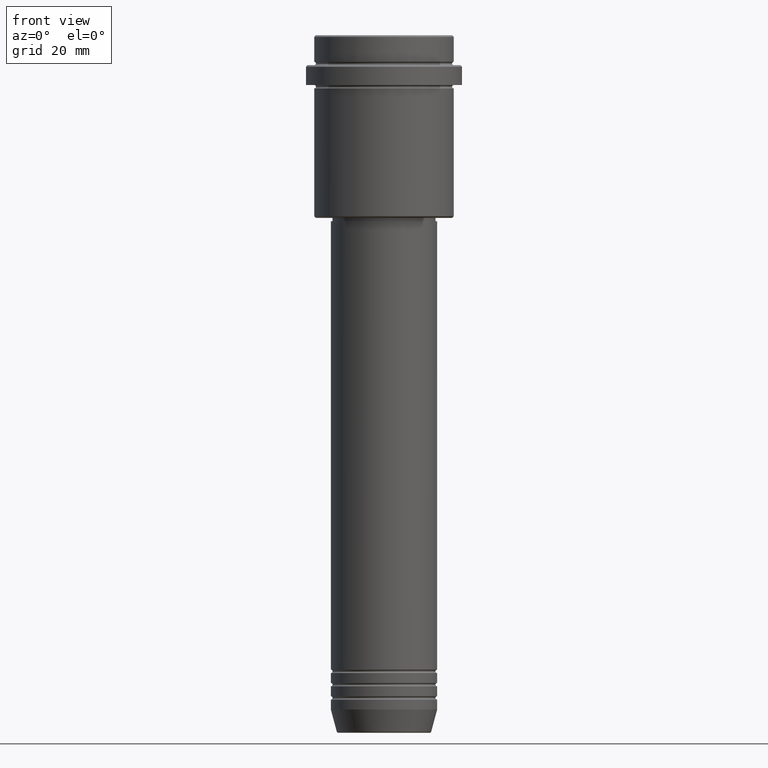
[diagram: clean part render]
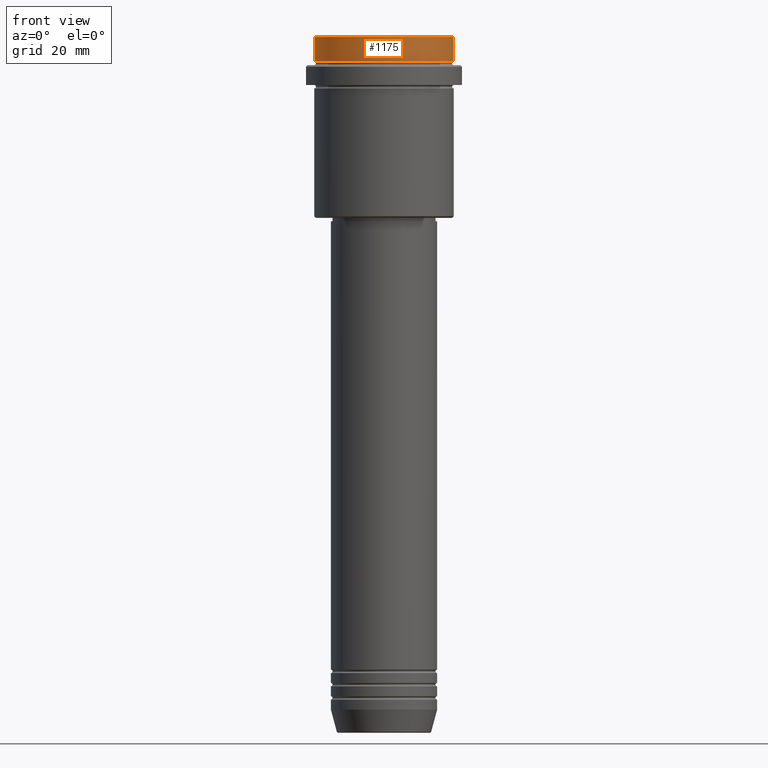
[diagram: same view with one face highlighted and labeled with its STEP entity id]
A machine part, front view. The second image highlights one B-rep face of the part: STEP entity #1175.
In plain terms, the highlighted cylindrical surface (partial cylindrical patch) has radius 21 mm, axis along (-0, -0, 1).
Its self-contained STEP definition (entity closure, byte-faithful):
#9 = EDGE_CURVE ( 'NONE', #1307, #630, #212, .T. ) ;
#16 = DIRECTION ( 'NONE',  ( -0.000000000000000000, -0.000000000000000000, 1.000000000000000000 ) ) ;
#29 = LINE ( 'NONE', #359, #855 ) ;
#67 = ORIENTED_EDGE ( 'NONE', *, *, #9, .T. ) ;
#79 = DIRECTION ( 'NONE',  ( -0.000000000000000000, -0.000000000000000000, 1.000000000000000000 ) ) ;
#114 = CARTESIAN_POINT ( 'NONE',  ( -20.99999999999999645, 2.571758278209441267E-15, -7.999999999999998224 ) ) ;
#115 = DIRECTION ( 'NONE',  ( 1.000000000000000000, 0.000000000000000000, 0.000000000000000000 ) ) ;
#138 = CARTESIAN_POINT ( 'NONE',  ( 0.000000000000000000, 0.000000000000000000, -0.5000000000000073275 ) ) ;
#212 = CIRCLE ( 'NONE', #594, 20.99999999999999645 ) ;
#319 = ORIENTED_EDGE ( 'NONE', *, *, #558, .T. ) ;
#359 = CARTESIAN_POINT ( 'NONE',  ( 20.99999999999999645, 0.000000000000000000, 0.000000000000000000 ) ) ;
#422 = DIRECTION ( 'NONE',  ( 1.000000000000000000, 0.000000000000000000, 0.000000000000000000 ) ) ;
#529 = AXIS2_PLACEMENT_3D ( 'NONE', #775, #79, #422 ) ;
#558 = EDGE_CURVE ( 'NONE', #1336, #730, #1222, .T. ) ;
#584 = DIRECTION ( 'NONE',  ( 0.000000000000000000, 0.000000000000000000, -1.000000000000000000 ) ) ;
#594 = AXIS2_PLACEMENT_3D ( 'NONE', #138, #584, #831 ) ;
#621 = AXIS2_PLACEMENT_3D ( 'NONE', #875, #770, #115 ) ;
#630 = VERTEX_POINT ( 'NONE', #1145 ) ;
#730 = VERTEX_POINT ( 'NONE', #1402 ) ;
#757 = CYLINDRICAL_SURFACE ( 'NONE', #529, 20.99999999999999645 ) ;
#770 = DIRECTION ( 'NONE',  ( -0.000000000000000000, -0.000000000000000000, 1.000000000000000000 ) ) ;
#775 = CARTESIAN_POINT ( 'NONE',  ( 0.000000000000000000, 0.000000000000000000, 0.000000000000000000 ) ) ;
#801 = ORIENTED_EDGE ( 'NONE', *, *, #1044, .T. ) ;
#811 = VECTOR ( 'NONE', #1072, 1000.000000000000000 ) ;
#831 = DIRECTION ( 'NONE',  ( 1.000000000000000000, 0.000000000000000000, 0.000000000000000000 ) ) ;
#855 = VECTOR ( 'NONE', #16, 1000.000000000000000 ) ;
#861 = LINE ( 'NONE', #1383, #811 ) ;
#875 = CARTESIAN_POINT ( 'NONE',  ( 0.000000000000000000, 0.000000000000000000, -7.999999999999998224 ) ) ;
#1005 = EDGE_LOOP ( 'NONE', ( #1399, #319, #801, #67 ) ) ;
#1024 = EDGE_CURVE ( 'NONE', #1336, #630, #861, .T. ) ;
#1044 = EDGE_CURVE ( 'NONE', #730, #1307, #29, .T. ) ;
#1072 = DIRECTION ( 'NONE',  ( -0.000000000000000000, -0.000000000000000000, 1.000000000000000000 ) ) ;
#1145 = CARTESIAN_POINT ( 'NONE',  ( -20.99999999999999645, 2.571758278209441267E-15, -0.5000000000000073275 ) ) ;
#1175 = ADVANCED_FACE ( 'NONE', ( #1414 ), #757, .T. ) ;
#1222 = CIRCLE ( 'NONE', #621, 20.99999999999999645 ) ;
#1233 = CARTESIAN_POINT ( 'NONE',  ( 20.99999999999999645, 0.000000000000000000, -0.5000000000000073275 ) ) ;
#1307 = VERTEX_POINT ( 'NONE', #1233 ) ;
#1336 = VERTEX_POINT ( 'NONE', #114 ) ;
#1383 = CARTESIAN_POINT ( 'NONE',  ( -20.99999999999999645, 2.571758278209441267E-15, 0.000000000000000000 ) ) ;
#1399 = ORIENTED_EDGE ( 'NONE', *, *, #1024, .F. ) ;
#1402 = CARTESIAN_POINT ( 'NONE',  ( 20.99999999999999645, 0.000000000000000000, -7.999999999999998224 ) ) ;
#1414 = FACE_OUTER_BOUND ( 'NONE', #1005, .T. ) ;